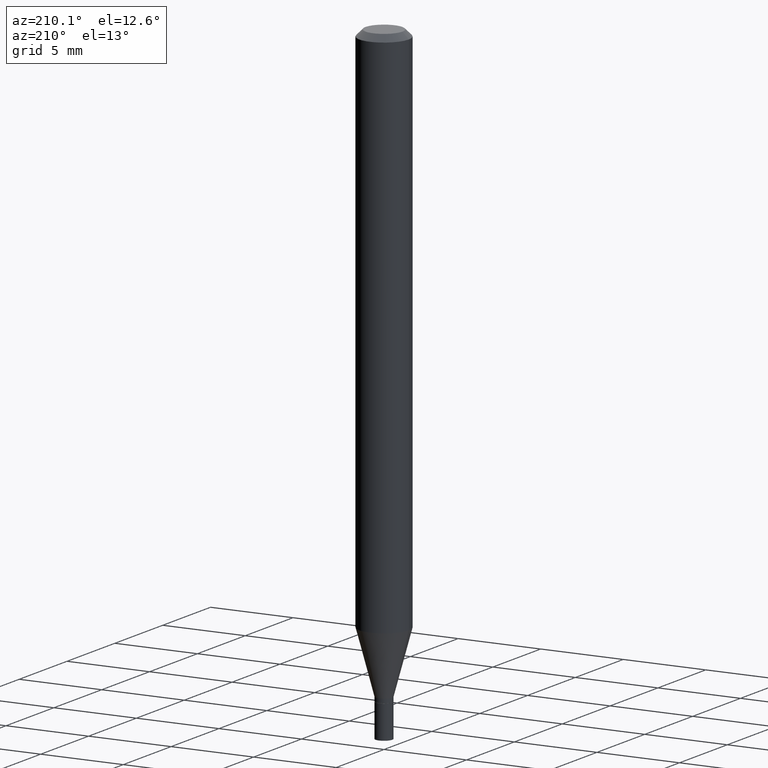
[diagram: clean part render]
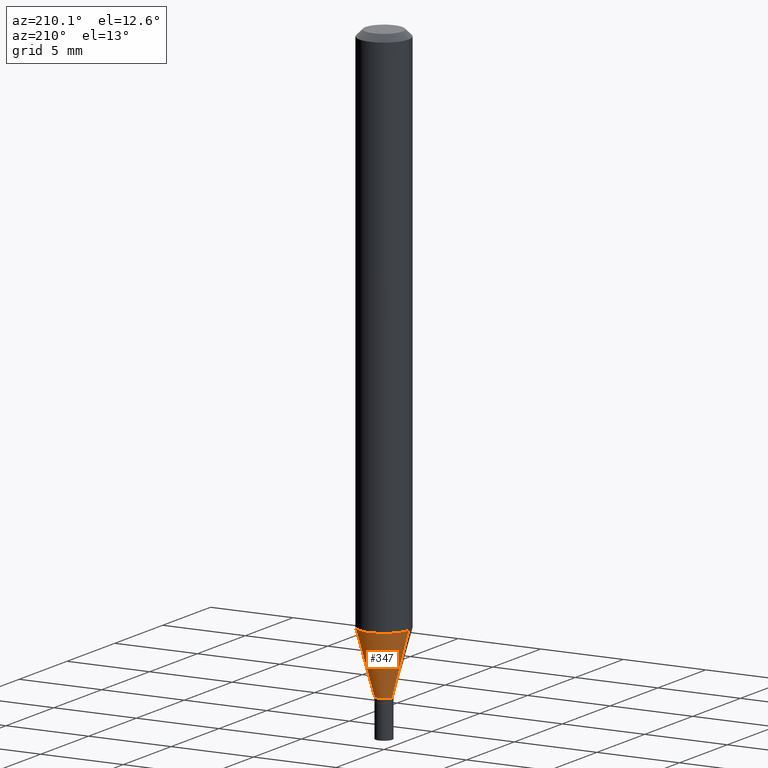
[diagram: same view with one face highlighted and labeled with its STEP entity id]
A machine part, auxiliary view. The second image highlights one B-rep face of the part: STEP entity #347.
In plain terms, the highlighted conical surface has half-angle 15 deg.
Its self-contained STEP definition (entity closure, byte-faithful):
#5 = LINE ( 'NONE', #40, #166 ) ;
#23 = ORIENTED_EDGE ( 'NONE', *, *, #54, .F. ) ;
#34 = CARTESIAN_POINT ( 'NONE',  ( 0.05905000000000001914, -4.826078435953056786E-15, -1.264143800722163924 ) ) ;
#38 = AXIS2_PLACEMENT_3D ( 'NONE', #299, #334, #224 ) ;
#40 = CARTESIAN_POINT ( 'NONE',  ( 0.01969999999999965529, -5.064044533858094768E-15, -1.411000000000000032 ) ) ;
#54 = EDGE_CURVE ( 'NONE', #129, #405, #457, .T. ) ;
#58 = DIRECTION ( 'NONE',  ( 1.000000000000000000, -6.982962677686270655E-15, 0.000000000000000000 ) ) ;
#61 = CIRCLE ( 'NONE', #130, 0.01969999999999965529 ) ;
#112 = EDGE_CURVE ( 'NONE', #429, #129, #5, .T. ) ;
#120 = FACE_OUTER_BOUND ( 'NONE', #315, .T. ) ;
#127 = DIRECTION ( 'NONE',  ( 1.000000000000000000, -6.982962677686252511E-15, 0.000000000000000000 ) ) ;
#129 = VERTEX_POINT ( 'NONE', #34 ) ;
#130 = AXIS2_PLACEMENT_3D ( 'NONE', #194, #415, #127 ) ;
#166 = VECTOR ( 'NONE', #251, 39.37007874015748143 ) ;
#173 = VECTOR ( 'NONE', #180, 39.37007874015748143 ) ;
#180 = DIRECTION ( 'NONE',  ( -0.2588190451025217942, 5.211531920934552619E-15, 0.9659258262890679791 ) ) ;
#182 = CONICAL_SURFACE ( 'NONE', #38, 0.01969999999999965529, 0.2617993877991505181 ) ;
#194 = CARTESIAN_POINT ( 'NONE',  ( 3.450556485527227711E-29, -4.926480169107677920E-15, -1.411000000000000032 ) ) ;
#201 = CARTESIAN_POINT ( 'NONE',  ( -0.05905000000000001914, -3.994159004369343951E-15, -1.264143800722163924 ) ) ;
#224 = DIRECTION ( 'NONE',  ( 1.000000000000000000, -6.982962677686252511E-15, 0.000000000000000000 ) ) ;
#235 = CARTESIAN_POINT ( 'NONE',  ( 3.091424231198371780E-29, -4.413734489835683444E-15, -1.264143800722163924 ) ) ;
#241 = EDGE_CURVE ( 'NONE', #338, #405, #393, .T. ) ;
#251 = DIRECTION ( 'NONE',  ( 0.2588190451025217942, 1.565188264969618812E-15, 0.9659258262890679791 ) ) ;
#262 = ORIENTED_EDGE ( 'NONE', *, *, #241, .T. ) ;
#298 = CARTESIAN_POINT ( 'NONE',  ( 0.01969999999999965529, -5.064044533858094768E-15, -1.411000000000000032 ) ) ;
#299 = CARTESIAN_POINT ( 'NONE',  ( 3.450556485527227711E-29, -4.926480169107677920E-15, -1.411000000000000032 ) ) ;
#300 = CARTESIAN_POINT ( 'NONE',  ( -0.01969999999999965529, -4.390331127266142070E-15, -1.411000000000000032 ) ) ;
#306 = EDGE_CURVE ( 'NONE', #429, #338, #61, .T. ) ;
#311 = AXIS2_PLACEMENT_3D ( 'NONE', #235, #382, #58 ) ;
#315 = EDGE_LOOP ( 'NONE', ( #363, #262, #23, #386 ) ) ;
#334 = DIRECTION ( 'NONE',  ( -2.445468806185136597E-29, 3.491481338843145583E-15, 1.000000000000000000 ) ) ;
#338 = VERTEX_POINT ( 'NONE', #300 ) ;
#347 = ADVANCED_FACE ( 'NONE', ( #120 ), #182, .T. ) ;
#363 = ORIENTED_EDGE ( 'NONE', *, *, #306, .T. ) ;
#382 = DIRECTION ( 'NONE',  ( -2.445468806185136597E-29, 3.491481338843145583E-15, 1.000000000000000000 ) ) ;
#386 = ORIENTED_EDGE ( 'NONE', *, *, #112, .F. ) ;
#393 = LINE ( 'NONE', #440, #173 ) ;
#405 = VERTEX_POINT ( 'NONE', #201 ) ;
#415 = DIRECTION ( 'NONE',  ( -2.445468806185136597E-29, 3.491481338843145583E-15, 1.000000000000000000 ) ) ;
#429 = VERTEX_POINT ( 'NONE', #298 ) ;
#440 = CARTESIAN_POINT ( 'NONE',  ( -0.01969999999999965529, -4.786503250162940978E-15, -1.411000000000000032 ) ) ;
#457 = CIRCLE ( 'NONE', #311, 0.05905000000000001914 ) ;